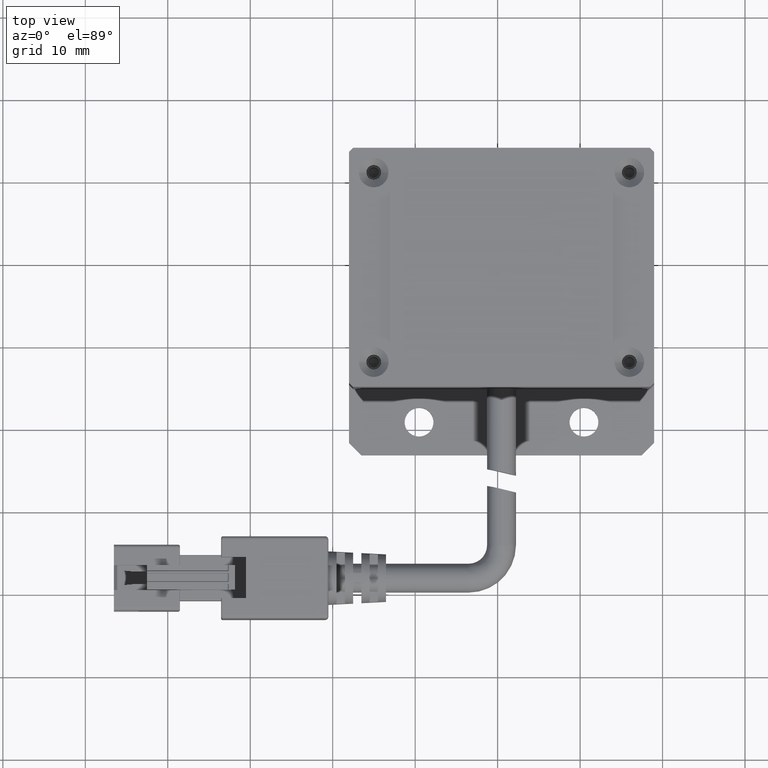
[diagram: clean part render]
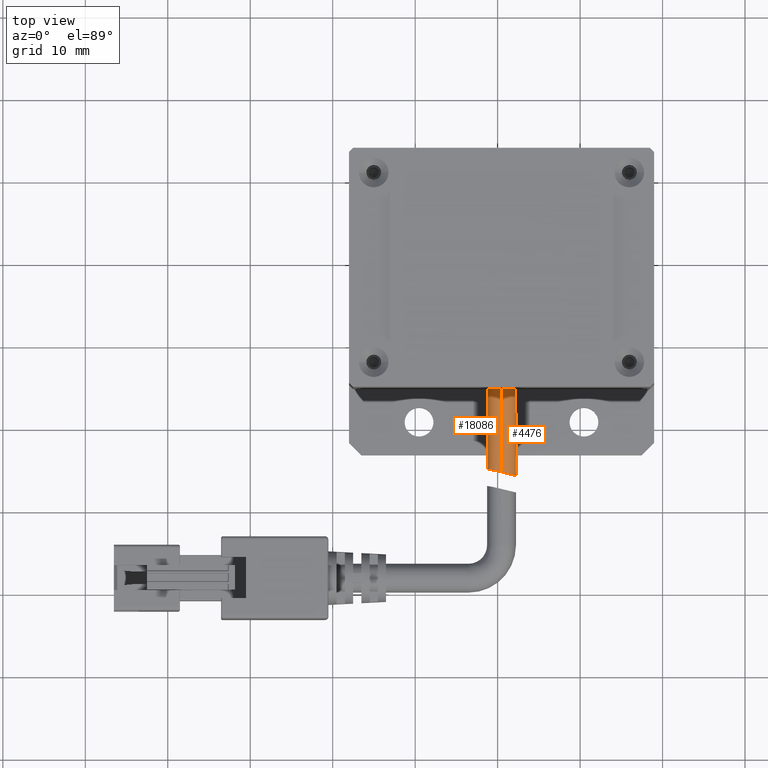
[diagram: same view with one multi-face feature highlighted, each face labeled with its STEP entity id]
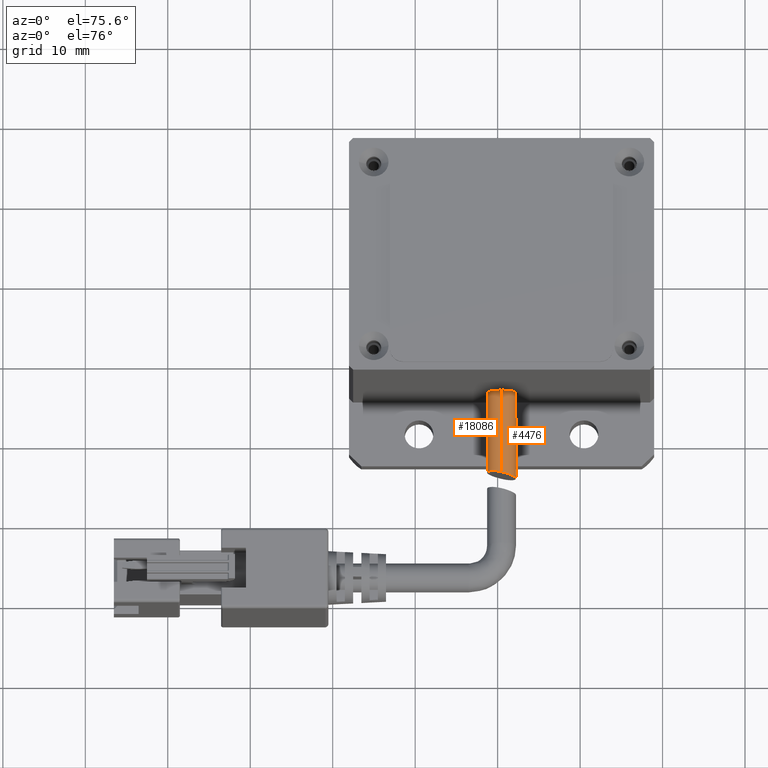
[diagram: same view with one multi-face feature highlighted, each face labeled with its STEP entity id]
A machine part, top view. The highlighted faces form ONE feature: a constant-radius fillet chain: 2 tangent blend faces with common blend radius 1.75 mm. The faces share edges in the B-rep.
A second angle (auxiliary view) of the same feature is appended — it is thin or edge-on in the first view.
Their STEP definitions:
[1] entity #4476 (Cylinder):
#43 = CARTESIAN_POINT ( 'NONE',  ( 1.526346058954211300, -25.46018412444359300, 5.400271376303662900 ) ) ;
#103 = CARTESIAN_POINT ( 'NONE',  ( 1.984025661186550800, -25.56817217877230100, 3.113870852844189000 ) ) ;
#1610 = CARTESIAN_POINT ( 'NONE',  ( 1.779748762345099800, -25.52088140049359000, 5.166920295776366200 ) ) ;
#1671 = CARTESIAN_POINT ( 'NONE',  ( 1.782025022611525300, -25.52141980853176800, 2.835515580640702200 ) ) ;
#1954 = CARTESIAN_POINT ( 'NONE',  ( 0.4705994654448234500, -34.05364642993505000, 5.749999999983630000 ) ) ;
#2316 = LINE ( 'NONE', #14174, #17904 ) ;
#2496 = DIRECTION ( 'NONE',  ( 0.0000000000000000000, 0.0000000000000000000, -1.000000000000000000 ) ) ;
#3110 = DIRECTION ( 'NONE',  ( 6.162975822039154700E-033, -1.000000000000000000, -0.0000000000000000000 ) ) ;
#3117 = ORIENTED_EDGE ( 'NONE', *, *, #3762, .F. ) ;
#3186 = CARTESIAN_POINT ( 'NONE',  ( 1.982590036491468600, -25.56784676534852700, 4.888631675858251300 ) ) ;
#3244 = CARTESIAN_POINT ( 'NONE',  ( 1.528691452692075600, -25.46075403154351900, 2.601499705496509200 ) ) ;
#3630 = ORIENTED_EDGE ( 'NONE', *, *, #13269, .T. ) ;
#3762 = EDGE_CURVE ( 'NONE', #8198, #9618, #16197, .T. ) ;
#3836 = ORIENTED_EDGE ( 'NONE', *, *, #19375, .T. ) ;
#3925 = CIRCLE ( 'NONE', #19607, 1.749999999999999800 ) ;
#4013 = DIRECTION ( 'NONE',  ( -6.162975822039154700E-033, 1.000000000000000000, 0.0000000000000000000 ) ) ;
#4476 = ADVANCED_FACE ( 'NONE', ( #8854 ), #19276, .T. ) ;
#4754 = CARTESIAN_POINT ( 'NONE',  ( 2.172832935185685400, -25.61034858166788200, 4.466923281395891900 ) ) ;
#4813 = CARTESIAN_POINT ( 'NONE',  ( 1.237548991285971000, -25.38921324399208900, 2.422931293328922200 ) ) ;
#4863 = DIRECTION ( 'NONE',  ( -6.162975822039154700E-033, 1.000000000000000000, 0.0000000000000000000 ) ) ;
#6035 = VERTEX_POINT ( 'NONE', #18161 ) ;
#6231 = CARTESIAN_POINT ( 'NONE',  ( 0.6965918080035690100, -25.25497713656480800, 5.738979390417672000 ) ) ;
#6299 = CARTESIAN_POINT ( 'NONE',  ( 2.220727273564397900, -25.62051373913998000, 3.886261959677683300 ) ) ;
#6360 = CARTESIAN_POINT ( 'NONE',  ( 0.6985309912472759100, -25.25495981535255300, 2.249999999983629500 ) ) ;
#7801 = CARTESIAN_POINT ( 'NONE',  ( 1.026576531974168600, -25.33682056819148100, 5.663215029880042600 ) ) ;
#7855 = CARTESIAN_POINT ( 'NONE',  ( 2.163334949554195600, -25.60808408685989300, 3.541029067901631400 ) ) ;
#7914 = VECTOR ( 'NONE', #12906, 1000.000000000000000 ) ;
#8198 = VERTEX_POINT ( 'NONE', #11493 ) ;
#8707 = ORIENTED_EDGE ( 'NONE', *, *, #9198, .T. ) ;
#8854 = FACE_OUTER_BOUND ( 'NONE', #10635, .T. ) ;
#9198 = EDGE_CURVE ( 'NONE', #6035, #17226, #2316, .T. ) ;
#9355 = CARTESIAN_POINT ( 'NONE',  ( 1.336791088347851800, -25.41377090730421200, 5.524818962831512100 ) ) ;
#9428 = CARTESIAN_POINT ( 'NONE',  ( 2.039982084639546700, -25.58078056934518000, 3.217092721508353100 ) ) ;
#9618 = VERTEX_POINT ( 'NONE', #18770 ) ;
#10614 = AXIS2_PLACEMENT_3D ( 'NONE', #11826, #4013, #2496 ) ;
#10635 = EDGE_LOOP ( 'NONE', ( #3117, #3630, #8707, #3836 ) ) ;
#10929 = CARTESIAN_POINT ( 'NONE',  ( 1.616772546055109400, -25.48205641460346600, 5.327351546331401600 ) ) ;
#10984 = CARTESIAN_POINT ( 'NONE',  ( 1.855268923521330400, -25.53854134236640400, 2.923722058540313200 ) ) ;
#11493 = CARTESIAN_POINT ( 'NONE',  ( 0.4705994654448235100, -25.19990101793981600, 5.749999999983629100 ) ) ;
#11826 = CARTESIAN_POINT ( 'NONE',  ( 0.4705994654448236700, -34.05364642993505000, 3.999999999983630400 ) ) ;
#12370 = CARTESIAN_POINT ( 'NONE',  ( 0.4705994654448235100, -25.19990101793981600, 5.749999999983629100 ) ) ;
#12426 = CARTESIAN_POINT ( 'NONE',  ( 0.4705994654448236700, -14.05364642993505500, 3.999999999983630400 ) ) ;
#12495 = CARTESIAN_POINT ( 'NONE',  ( 1.852995511739378400, -25.53801304954572900, 5.079241823436966300 ) ) ;
#12557 = CARTESIAN_POINT ( 'NONE',  ( 1.617468887431034800, -25.48222608520156700, 2.673142251845027000 ) ) ;
#12906 = DIRECTION ( 'NONE',  ( -6.162975822039154700E-033, 1.000000000000000000, 0.0000000000000000000 ) ) ;
#13269 = EDGE_CURVE ( 'NONE', #8198, #6035, #15253, .T. ) ;
#13985 = DIRECTION ( 'NONE',  ( 0.0000000000000000000, 0.0000000000000000000, -1.000000000000000000 ) ) ;
#14001 = CARTESIAN_POINT ( 'NONE',  ( 0.5845594501789808100, -25.22742902088086900, 5.749999999982521500 ) ) ;
#14063 = CARTESIAN_POINT ( 'NONE',  ( 2.038636577282457300, -25.58047809682035000, 4.785518077406163900 ) ) ;
#14124 = CARTESIAN_POINT ( 'NONE',  ( 1.339338339589921000, -25.41439887055783600, 2.476630545220108300 ) ) ;
#14174 = CARTESIAN_POINT ( 'NONE',  ( 0.4705994654448236700, -34.05364642993505000, 2.249999999983630400 ) ) ;
#15253 = B_SPLINE_CURVE_WITH_KNOTS ( 'NONE', 3,
 ( #12370, #14001, #6231, #17123, #7801, #18672, #9355, #43, #10929, #1610, #12495, #3186, #14063, #4754, #15617, #6299, #17192, #7855, #18728, #9428, #103, #10984, #1671, #12557, #3244, #14124, #4813, #15681, #6360, #17259 ),
 .UNSPECIFIED., .F., .F.,
 ( 4, 2, 2, 2, 2, 2, 2, 2, 2, 2, 2, 2, 2, 2, 4 ),
 ( 1.728278130482739700E-014, 0.0003467692703522316800, 0.0006935385406871806300, 0.001040307811022129500, 0.001387077081357078400, 0.001733846351692027500, 0.002080615622026976400, 0.002774154162696870800, 0.003120923433031818600, 0.003467692703366765500, 0.003814461973701713300, 0.004161231244036661100, 0.004508000514371608500, 0.004854769784706555000, 0.005548308325376448100 ),
 .UNSPECIFIED. ) ;
#15617 = CARTESIAN_POINT ( 'NONE',  ( 2.220340590680548700, -25.62043051789700200, 4.233325397064796800 ) ) ;
#15681 = CARTESIAN_POINT ( 'NONE',  ( 0.9226563756604320200, -25.31101379792079300, 2.294252752377428100 ) ) ;
#16197 = LINE ( 'NONE', #1954, #7914 ) ;
#17123 = CARTESIAN_POINT ( 'NONE',  ( 0.9170992705115325000, -25.30954815112586700, 5.695806528843845300 ) ) ;
#17192 = CARTESIAN_POINT ( 'NONE',  ( 2.209163843499488700, -25.61803601229597000, 3.768912053481427100 ) ) ;
#17226 = VERTEX_POINT ( 'NONE', #19838 ) ;
#17259 = CARTESIAN_POINT ( 'NONE',  ( 0.4705994654448243400, -25.19990101793981900, 2.249999999983630000 ) ) ;
#17904 = VECTOR ( 'NONE', #4863, 1000.000000000000000 ) ;
#18161 = CARTESIAN_POINT ( 'NONE',  ( 0.4705994654448243400, -25.19990101793981900, 2.249999999983630000 ) ) ;
#18672 = CARTESIAN_POINT ( 'NONE',  ( 1.236856494025270900, -25.38904170372084600, 5.577417161146448700 ) ) ;
#18728 = CARTESIAN_POINT ( 'NONE',  ( 2.129447635897109900, -25.60068846934981600, 3.430677279984543700 ) ) ;
#18770 = CARTESIAN_POINT ( 'NONE',  ( 0.4705994654448234500, -14.05364642993505500, 5.749999999983630900 ) ) ;
#19276 = CYLINDRICAL_SURFACE ( 'NONE', #10614, 1.749999999999999800 ) ;
#19375 = EDGE_CURVE ( 'NONE', #17226, #9618, #3925, .T. ) ;
#19607 = AXIS2_PLACEMENT_3D ( 'NONE', #12426, #3110, #13985 ) ;
#19838 = CARTESIAN_POINT ( 'NONE',  ( 0.4705994654448236700, -14.05364642993505500, 2.249999999983630400 ) ) ;
[2] entity #18086 (Cylinder):
#737 = CARTESIAN_POINT ( 'NONE',  ( 0.3570912748878939900, -25.17248214972246600, 2.249999999983628700 ) ) ;
#803 = CARTESIAN_POINT ( 'NONE',  ( -0.8399824093573518000, -24.92198896589667400, 2.834665327722168700 ) ) ;
#875 = CARTESIAN_POINT ( 'NONE',  ( -0.8422630943240884100, -24.92159871910014600, 5.162894106211111600 ) ) ;
#1114 = EDGE_CURVE ( 'NONE', #6035, #8198, #11473, .T. ) ;
#1167 = EDGE_LOOP ( 'NONE', ( #12228, #12187, #13173, #4066 ) ) ;
#1954 = CARTESIAN_POINT ( 'NONE',  ( 0.4705994654448234500, -34.05364642993505000, 5.749999999983630000 ) ) ;
#2288 = FACE_OUTER_BOUND ( 'NONE', #1167, .T. ) ;
#2316 = LINE ( 'NONE', #14174, #17904 ) ;
#2359 = CARTESIAN_POINT ( 'NONE',  ( -1.042873559093519900, -24.88975250661182100, 3.113862372400553600 ) ) ;
#2432 = CARTESIAN_POINT ( 'NONE',  ( -0.5884679230606761900, -24.96697160297496500, 5.397789949337921600 ) ) ;
#2674 = DIRECTION ( 'NONE',  ( 6.162975822039154700E-033, -1.000000000000000000, -0.0000000000000000000 ) ) ;
#3762 = EDGE_CURVE ( 'NONE', #8198, #9618, #16197, .T. ) ;
#3871 = CARTESIAN_POINT ( 'NONE',  ( 0.2452615692010497200, -25.14595928630660300, 2.260936063031251400 ) ) ;
#3956 = CARTESIAN_POINT ( 'NONE',  ( -1.232107582558581000, -24.86303441953112200, 3.535003381303519100 ) ) ;
#4020 = CARTESIAN_POINT ( 'NONE',  ( -0.2964634343618862700, -25.02514302175652000, 5.577033294611796400 ) ) ;
#4066 = ORIENTED_EDGE ( 'NONE', *, *, #9198, .F. ) ;
#4141 = DIRECTION ( 'NONE',  ( -6.162975822039154700E-033, 1.000000000000000000, 0.0000000000000000000 ) ) ;
#4863 = DIRECTION ( 'NONE',  ( -6.162975822039154700E-033, 1.000000000000000000, 0.0000000000000000000 ) ) ;
#5139 = EDGE_CURVE ( 'NONE', #9618, #17226, #14453, .T. ) ;
#5416 = CARTESIAN_POINT ( 'NONE',  ( 0.4705994654448243400, -25.19990101793981900, 2.249999999983630000 ) ) ;
#5490 = CARTESIAN_POINT ( 'NONE',  ( -1.279511758848314700, -24.85740799405950300, 4.113584093202124600 ) ) ;
#5559 = CARTESIAN_POINT ( 'NONE',  ( 0.2435945943174291100, -25.14506606184006500, 5.749999999985841500 ) ) ;
#5672 = AXIS2_PLACEMENT_3D ( 'NONE', #12007, #2674, #13581 ) ;
#6035 = VERTEX_POINT ( 'NONE', #18161 ) ;
#6979 = CARTESIAN_POINT ( 'NONE',  ( -0.08500202956045038700, -25.07058296162030700, 2.336644339365581600 ) ) ;
#7060 = CARTESIAN_POINT ( 'NONE',  ( -1.222497884999603100, -24.86467902237128100, 4.457498772719304700 ) ) ;
#7359 = AXIS2_PLACEMENT_3D ( 'NONE', #13460, #4141, #10379 ) ;
#7914 = VECTOR ( 'NONE', #12906, 1000.000000000000000 ) ;
#8111 = CYLINDRICAL_SURFACE ( 'NONE', #7359, 1.749999999999999800 ) ;
#8198 = VERTEX_POINT ( 'NONE', #11493 ) ;
#8545 = CARTESIAN_POINT ( 'NONE',  ( -0.3959358429014658800, -25.00469486323454000, 2.475344811886908600 ) ) ;
#8613 = CARTESIAN_POINT ( 'NONE',  ( -1.099731379048436200, -24.88150220582965100, 4.780981507881210600 ) ) ;
#9198 = EDGE_CURVE ( 'NONE', #6035, #17226, #2316, .T. ) ;
#9618 = VERTEX_POINT ( 'NONE', #18770 ) ;
#10119 = CARTESIAN_POINT ( 'NONE',  ( -0.6768385021720296800, -24.95062188157074300, 2.673721047648934100 ) ) ;
#10195 = CARTESIAN_POINT ( 'NONE',  ( -0.9154801279334111600, -24.90960732837700300, 5.074461403274026100 ) ) ;
#10379 = DIRECTION ( 'NONE',  ( 0.0000000000000000000, 0.0000000000000000000, -1.000000000000000000 ) ) ;
#11473 = B_SPLINE_CURVE_WITH_KNOTS ( 'NONE', 3,
 ( #5416, #737, #3871, #16312, #6979, #17871, #8545, #19422, #10119, #803, #11685, #2359, #13255, #3956, #14827, #5490, #16380, #7060, #17944, #8613, #19491, #10195, #875, #11760, #2432, #13334, #4020, #14901, #5559, #16452 ),
 .UNSPECIFIED., .F., .F.,
 ( 4, 2, 2, 2, 2, 2, 2, 2, 2, 2, 2, 2, 2, 2, 4 ),
 ( 0.005548308325376448100, 0.005893685317680524300, 0.006239062309984600600, 0.006584439302288677700, 0.006929816294592753100, 0.007275193286896830200, 0.007620570279200906400, 0.008311324263809059800, 0.008656701256113136900, 0.009002078248417212300, 0.009347455240721289400, 0.009692832233025366500, 0.01003820922532944500, 0.01038358621763352100, 0.01107434020224167800 ),
 .UNSPECIFIED. ) ;
#11493 = CARTESIAN_POINT ( 'NONE',  ( 0.4705994654448235100, -25.19990101793981600, 5.749999999983629100 ) ) ;
#11685 = CARTESIAN_POINT ( 'NONE',  ( -0.9132812347323217000, -24.90996018052063100, 2.922635299104201900 ) ) ;
#11760 = CARTESIAN_POINT ( 'NONE',  ( -0.6774484790147192700, -24.95050497102068800, 5.325864518086371300 ) ) ;
#12007 = CARTESIAN_POINT ( 'NONE',  ( 0.4705994654448236700, -14.05364642993505500, 3.999999999983630400 ) ) ;
#12187 = ORIENTED_EDGE ( 'NONE', *, *, #3762, .T. ) ;
#12228 = ORIENTED_EDGE ( 'NONE', *, *, #1114, .T. ) ;
#12906 = DIRECTION ( 'NONE',  ( -6.162975822039154700E-033, 1.000000000000000000, 0.0000000000000000000 ) ) ;
#13173 = ORIENTED_EDGE ( 'NONE', *, *, #5139, .T. ) ;
#13255 = CARTESIAN_POINT ( 'NONE',  ( -1.098571058635477500, -24.88166961181650900, 3.216777711591851200 ) ) ;
#13334 = CARTESIAN_POINT ( 'NONE',  ( -0.3985974983045672500, -25.00415673099631400, 5.523133977715257700 ) ) ;
#13460 = CARTESIAN_POINT ( 'NONE',  ( 0.4705994654448236700, -34.05364642993505000, 3.999999999983630400 ) ) ;
#13581 = DIRECTION ( 'NONE',  ( 0.0000000000000000000, 0.0000000000000000000, -1.000000000000000000 ) ) ;
#14174 = CARTESIAN_POINT ( 'NONE',  ( 0.4705994654448236700, -34.05364642993505000, 2.249999999983630400 ) ) ;
#14453 = CIRCLE ( 'NONE', #5672, 1.749999999999999800 ) ;
#14827 = CARTESIAN_POINT ( 'NONE',  ( -1.279175606184047400, -24.85744997765360900, 3.767729095170846000 ) ) ;
#14901 = CARTESIAN_POINT ( 'NONE',  ( 0.01920171208019053100, -25.09296698378538800, 5.705994749905083400 ) ) ;
#16197 = LINE ( 'NONE', #1954, #7914 ) ;
#16312 = CARTESIAN_POINT ( 'NONE',  ( 0.02474922023852828300, -25.09512249509186400, 2.304022965014888700 ) ) ;
#16380 = CARTESIAN_POINT ( 'NONE',  ( -1.267988952804494500, -24.85882595025181300, 4.230638411931686900 ) ) ;
#16452 = CARTESIAN_POINT ( 'NONE',  ( 0.4705994654448235100, -25.19990101793981600, 5.749999999983629100 ) ) ;
#17226 = VERTEX_POINT ( 'NONE', #19838 ) ;
#17871 = CARTESIAN_POINT ( 'NONE',  ( -0.2957008689630299400, -25.02530166820251600, 2.422587919248664800 ) ) ;
#17904 = VECTOR ( 'NONE', #4863, 1000.000000000000000 ) ;
#17944 = CARTESIAN_POINT ( 'NONE',  ( -1.188838595878819500, -24.86907829348658100, 4.567570610106566100 ) ) ;
#18086 = ADVANCED_FACE ( 'NONE', ( #2288 ), #8111, .T. ) ;
#18161 = CARTESIAN_POINT ( 'NONE',  ( 0.4705994654448243400, -25.19990101793981900, 2.249999999983630000 ) ) ;
#18770 = CARTESIAN_POINT ( 'NONE',  ( 0.4705994654448234500, -14.05364642993505500, 5.749999999983630900 ) ) ;
#19422 = CARTESIAN_POINT ( 'NONE',  ( -0.5861404330212365300, -24.96741100540515000, 2.600443759530610700 ) ) ;
#19491 = CARTESIAN_POINT ( 'NONE',  ( -1.043988438334859400, -24.88958889393778100, 4.884142198990447000 ) ) ;
#19838 = CARTESIAN_POINT ( 'NONE',  ( 0.4705994654448236700, -14.05364642993505500, 2.249999999983630400 ) ) ;